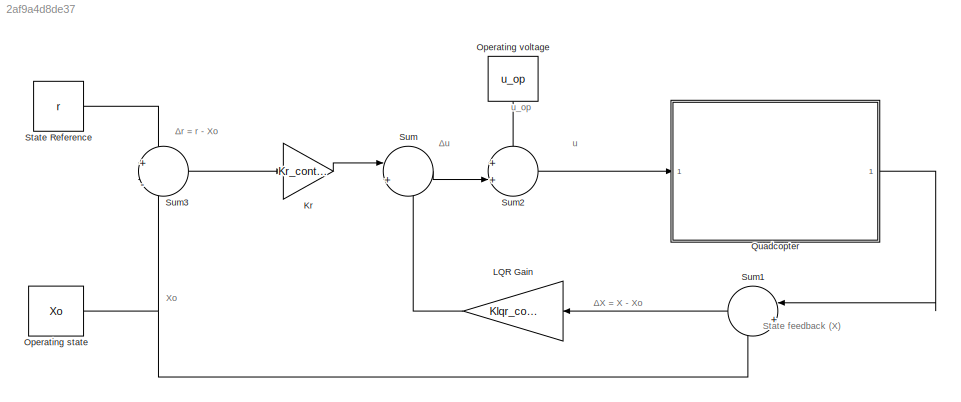
MODEL slx_2af9a4d8de37
KIND model
BLOCK [Gain] Kr
  Gain = Kr_continuous
  Multiplication = Matrix(K*u)
  OutDataTypeStr = Inherit: Inherit via internal rule
  ParamDataTypeStr = Inherit: Inherit via internal rule
  SaturateOnIntegerOverflow = off
BLOCK [Gain] LQR Gain
  Gain = Klqr_continuous
  Multiplication = Matrix(K*u)
  OutDataTypeStr = Inherit: Inherit via internal rule
  ParamDataTypeStr = Inherit: Inherit via internal rule
  SaturateOnIntegerOverflow = off
BLOCK [Constant] Operating state
  Value = Xo
  VectorParams1D = off
BLOCK [Constant] Operating voltage
  Value = u_op
  VectorParams1D = off
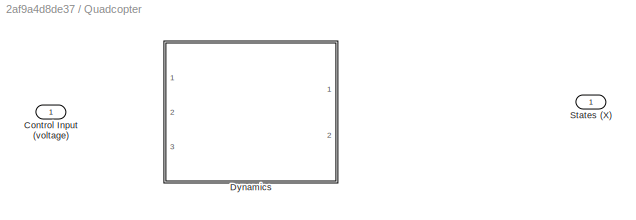
BLOCK [SubSystem] Quadcopter
  Ports = [1, 1]
  RequestExecContextInheritance = off
BLOCK [Inport] Quadcopter/Control Input (voltage)
  IconDisplay = Port number
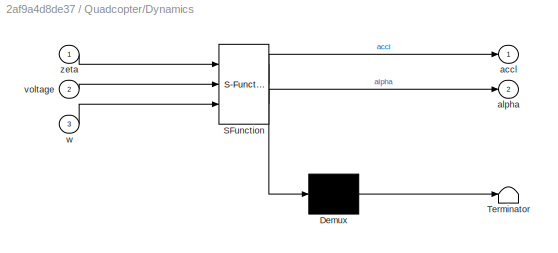
BLOCK [SubSystem] Quadcopter/Dynamics
  ErrorFcn = Stateflow.Translate.translate
  PermitHierarchicalResolution = ExplicitOnly
  Ports = [3, 2]
  RequestExecContextInheritance = off
  SFBlockType = MATLAB Function
  TreatAsAtomicUnit = on
BLOCK [Demux] Quadcopter/Dynamics/ Demux 
  Outputs = 1
  Ports = [1, 1]
BLOCK [S-Function] Quadcopter/Dynamics/ SFunction 
  EnableBusSupport = on
  FunctionName = sf_sfun
  PortCounts = [3 3]
  Ports = [3, 3]
  Tag = Stateflow S-Function LQR_Control_diagram 2
BLOCK [Terminator] Quadcopter/Dynamics/ Terminator 
BLOCK [Outport] Quadcopter/Dynamics/accl
  IconDisplay = Port number
BLOCK [Outport] Quadcopter/Dynamics/alpha
  IconDisplay = Port number
  Port = 2
BLOCK [Inport] Quadcopter/Dynamics/voltage
  IconDisplay = Port number
  Port = 2
BLOCK [Inport] Quadcopter/Dynamics/w
  IconDisplay = Port number
  Port = 3
BLOCK [Inport] Quadcopter/Dynamics/zeta
  IconDisplay = Port number
BLOCK [Outport] Quadcopter/States (X)
  IconDisplay = Port number
BLOCK [Constant] State Reference
  Value = r
  VectorParams1D = off
BLOCK [Sum] Sum
  IconShape = round
  InputSameDT = off
  Inputs = |+-
  OutDataTypeStr = Inherit: Inherit via internal rule
  Ports = [2, 1]
  SaturateOnIntegerOverflow = off
BLOCK [Sum] Sum1
  IconShape = round
  InputSameDT = off
  Inputs = |+-
  OutDataTypeStr = Inherit: Inherit via internal rule
  Ports = [2, 1]
  SaturateOnIntegerOverflow = off
BLOCK [Sum] Sum2
  IconShape = round
  InputSameDT = off
  Inputs = ++|
  OutDataTypeStr = Inherit: Inherit via internal rule
  Ports = [2, 1]
  SaturateOnIntegerOverflow = off
BLOCK [Sum] Sum3
  IconShape = round
  InputSameDT = off
  Inputs = +|-
  OutDataTypeStr = Inherit: Inherit via internal rule
  Ports = [2, 1]
  SaturateOnIntegerOverflow = off
ANNOTATION (root): ΔX = X - Xo
ANNOTATION (root): State feedback (X)
ANNOTATION (root): Xo
ANNOTATION (root): u_op
ANNOTATION (root): Δr = r - Xo
ANNOTATION (root): Δu
ANNOTATION (root): u
LINE Kr:1 -> Sum:1
LINE LQR Gain:1 -> Sum:2
NET Operating state:1 -> Sum1:2, Sum3:2
LINE Operating voltage:1 -> Sum2:1
LINE Quadcopter:1 -> Sum1:1
LINE State Reference:1 -> Sum3:1
LINE Sum1:1 -> LQR Gain:1
LINE Sum2:1 -> Quadcopter:1
LINE Sum3:1 -> Kr:1
LINE Sum:1 -> Sum2:2
note: NET lines group one-source signal fan-out (src -> all destinations, sorted); 1:1 wires keep LINE
CHART Quadcopter/Dynamics states=1 transitions=1
  STATE_LABEL 'eML_blk_kernel()'
  STATE_LABEL 'SCRIPT:\nfunction [accl, alpha] = fcn(zeta, voltage, w)\n\n    Ixx = 2.09*10^(-05);\n    Iyy = 2.09*10^(-05);\n    Izz = 3.81*10^(-05);\n    I = diag([Ixx,Iyy,Izz]);                              % Inertia matrix - needs revision\n\n    d = 0.046;\n    m = 0.027;\n    g = 9.8;\n\n%%%%%%%%%%%%%%%%%%%%%%%%%%%%%%%%%%%%%%%%%%%%%%%%%%%%%%%%%%%%%%%%%%%%%%%%%%%\n%3\n    theta = zeta(1);         % pitch    \n    phi = ze...<+834ch>'
